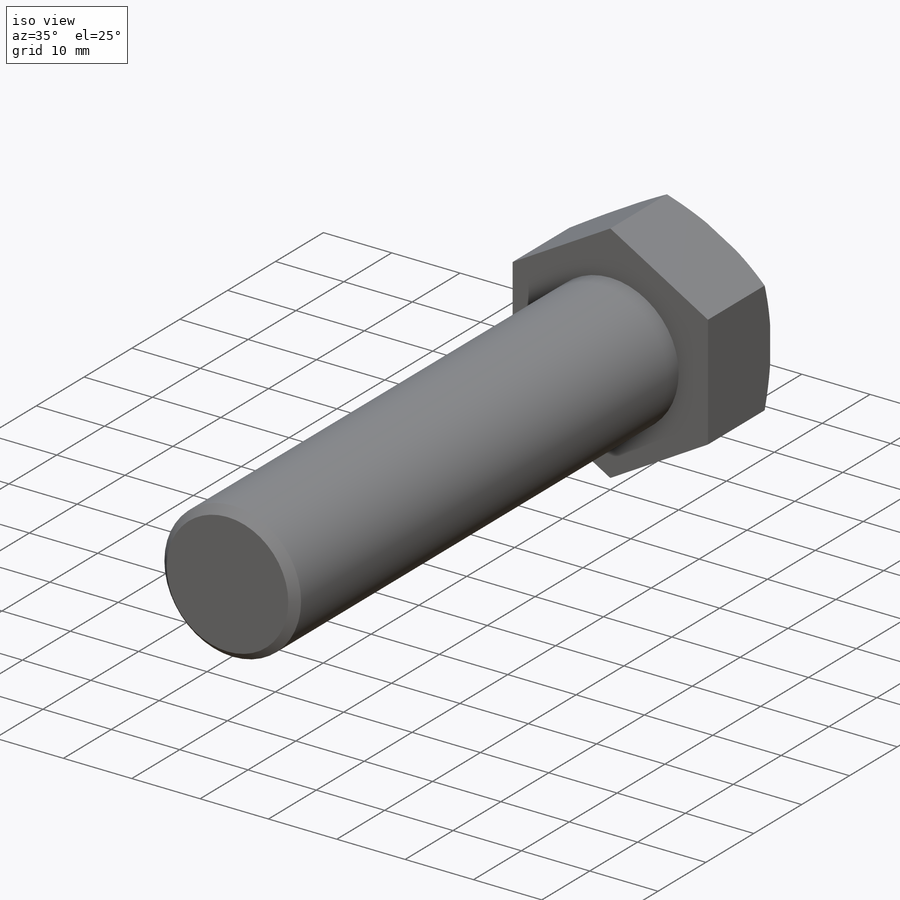
[diagram: iso view]
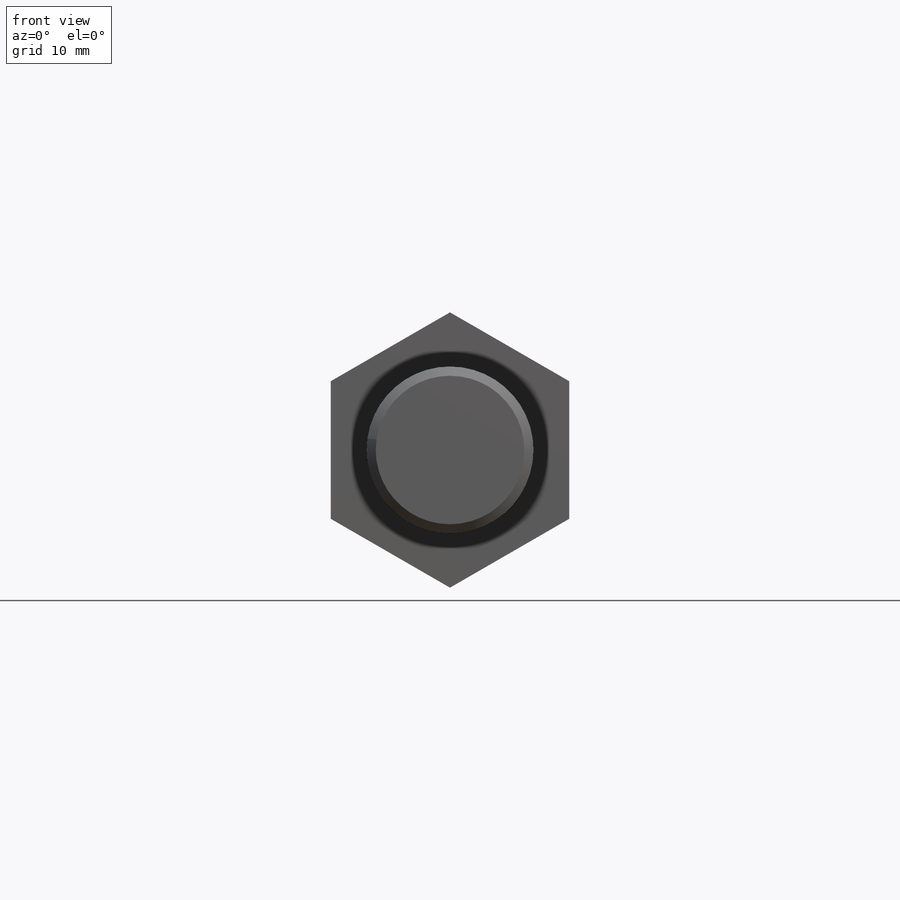
[diagram: front view]
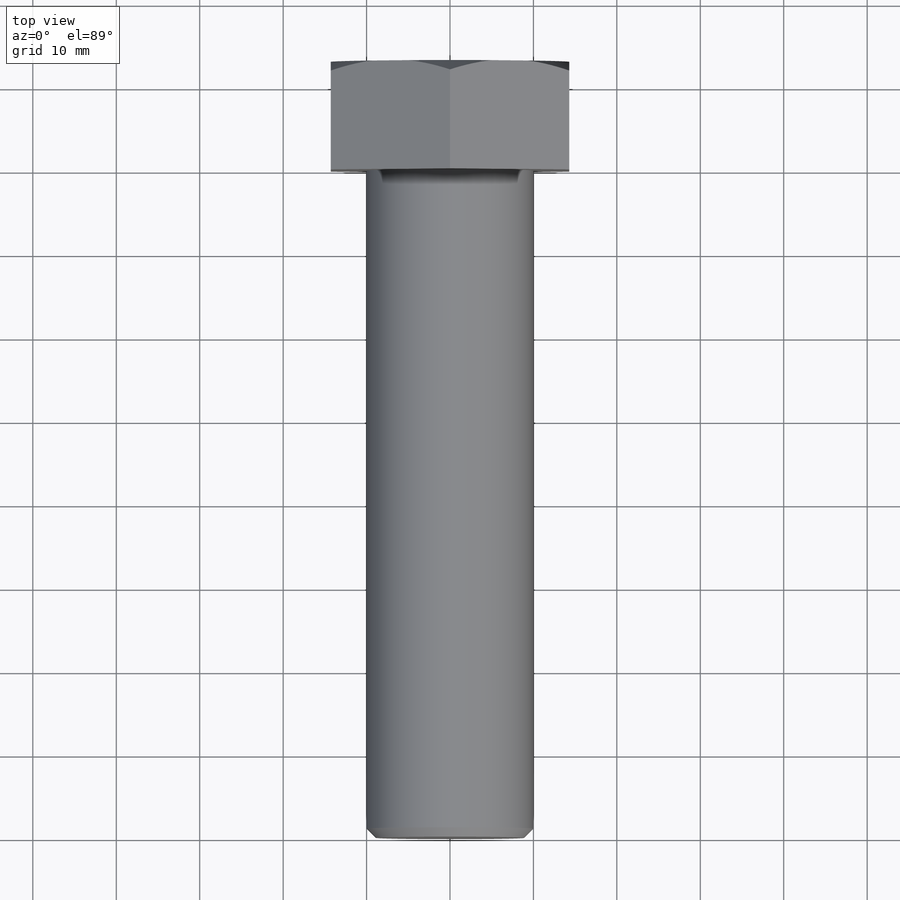
[diagram: top view]
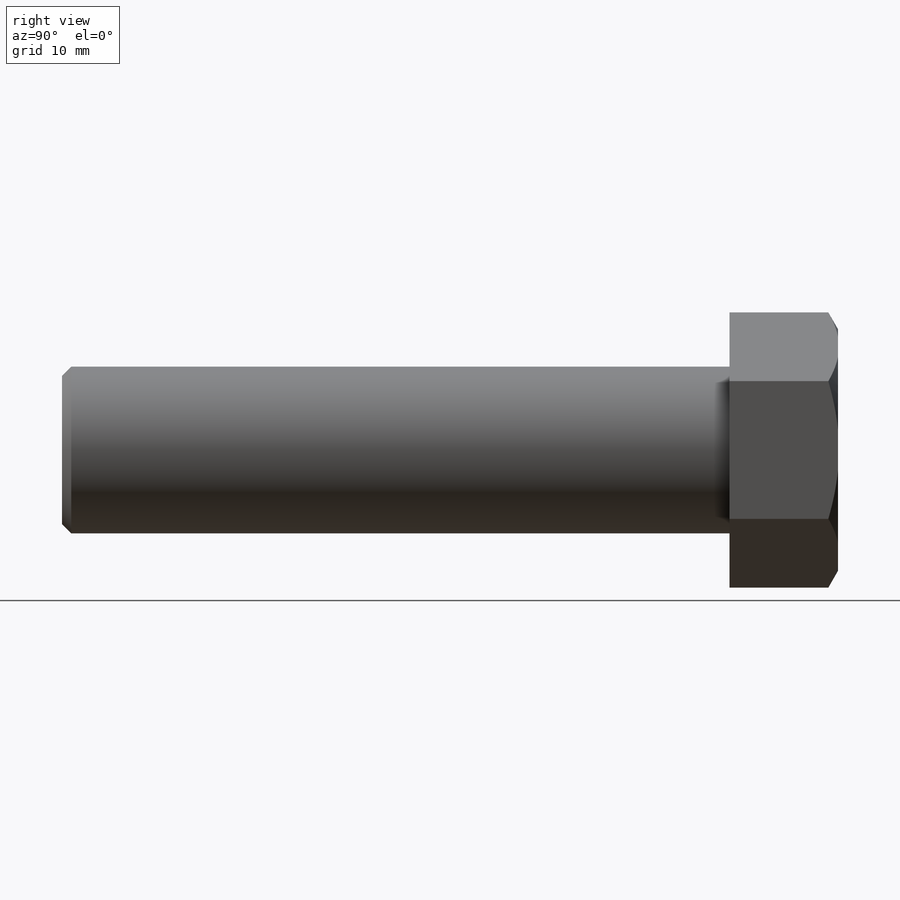
[diagram: right view]
SOLIDWORKS PART (.sldprt)
format: sldprt  version: not decoded by parser v0  size: 314,880 bytes
history: native  units: mm
features: plane x3, sketch x3, extrude x2, material x1, thread x1, cut_revolve x1, chamfer x1 (+9 scaffold rows collapsed)
feature tree (21):
  scaffold x9  (default folders/planes/origin — collapsed)
  material  "AISI 304"
  plane  "Спереди"
  plane  "Сверху"
  plane  "Справа"
  sketch  "Эскиз1"  dims[D1=20.0mm D2=33.0mm]
  extrude  "Бобышка-Вытянуть1"  [1 undecoded]
  thread  "Условное изображение резьбы1"  Diameter=50mm  [1 undecoded]
  extrude  "Бобышка-Вытянуть2"  [1 undecoded]
  sketch  "Эскиз1<4>"  dims[D1=13.0mm]
  sketch  "Эскиз3"  dims[c1.D1=~7.938268mm c2.D1=30.0deg c2.D2=2.0mm c2.D3=10.0mm c3.D1=10.0mm c3.D2=10.0mm c4.D2=30.0deg c4.D3=2.0mm]
  cut_revolve  "Вырез-Повернуть1"  Angle=360deg
  chamfer  "Фаска1"  Distance=1.1015mm Angle=45deg
decode coverage: 6 of 8 modeling features carry decoded parameters
note: ~ marks probable driven/reference dimensions
note: 3 parameter values undecoded
note: suppression state not decoded; provenance and decode notes live in map.json
